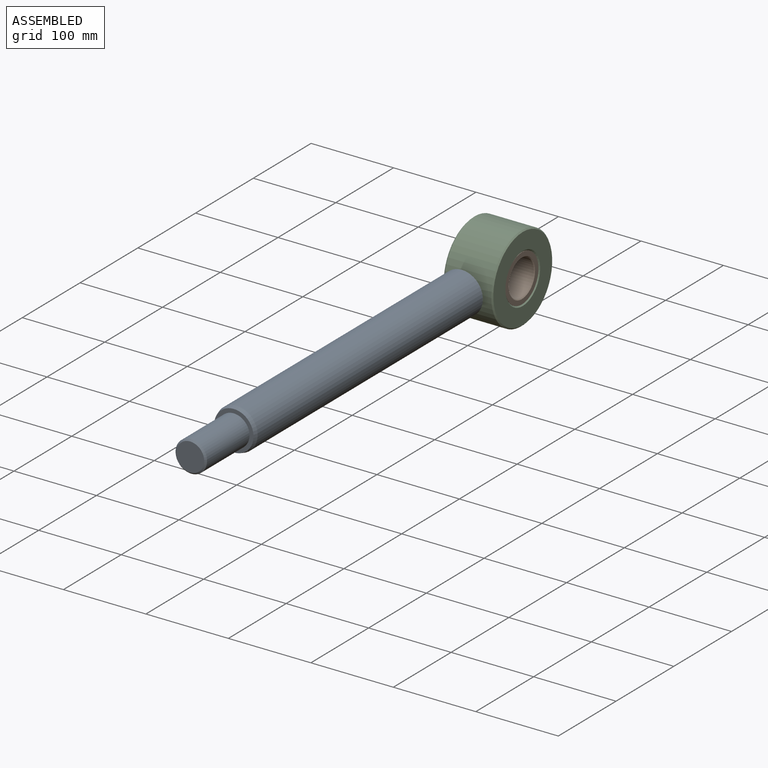
[diagram: assembled view]
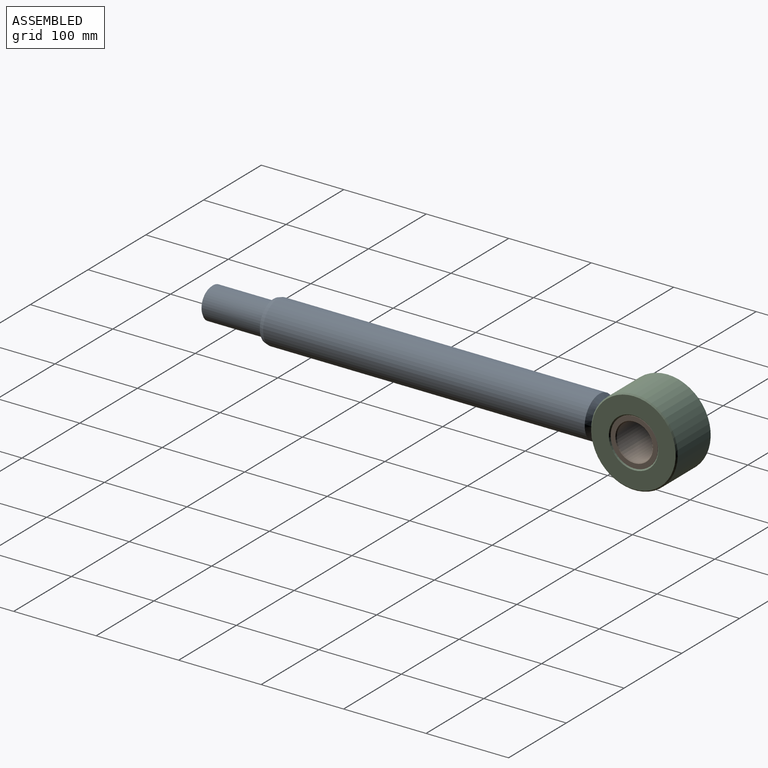
[diagram: assembled view, second angle]
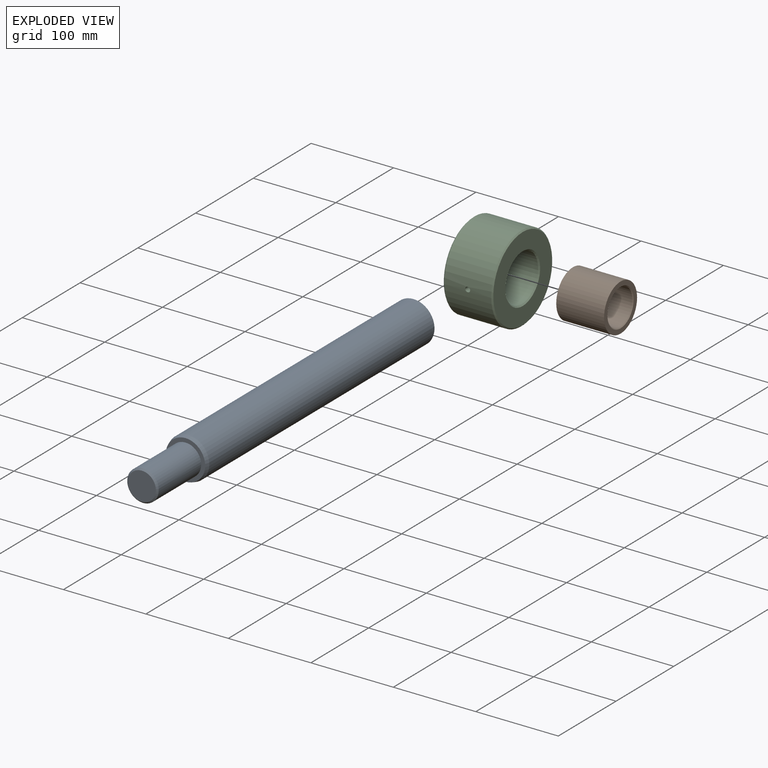
[diagram: exploded view]
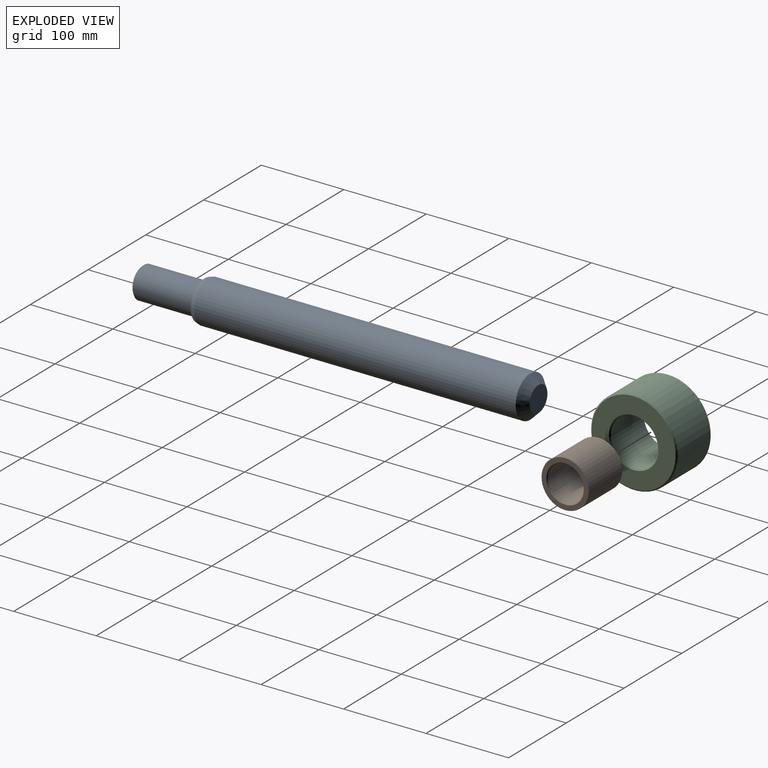
[diagram: exploded view, second angle]
ASSEMBLY  parts=3 mates=2
PART A: 8 faces, bbox 50.8x480.5x50.8 mm
  f0: cylinder r=25.4mm len=389.95mm, axis (0,1,0), area 62233.3mm2, adj f5,f7
  f1: plane 30.8x30.8mm, normal (0,1,0), area 745.1mm2, adj f7
  f2: cylinder r=19.05mm len=73.5mm, axis (0,-1,0), area 8797.6mm2, adj f3,f6
  f3: plane 47.8x47.8mm, normal (0,-1,0), area 654.4mm2, adj f2,f5
  f4: plane 34.1x34.1mm, normal (0,-1,0), area 913.3mm2, adj f6
  f5: cone r=23.9mm half-angle=16.7deg, axis (0,1,0), area 808.5mm2, adj f0,f3
  f6: cone r=17.05mm half-angle=45deg, axis (0,1,0), area 320.8mm2, adj f2,f4
  f7: cone r=25.4mm half-angle=45deg, axis (0,-1,0), area 1812.7mm2, adj f0,f1
PART B: 6 faces, bbox 57.2x58x57.2 mm
  f0: cylinder r=21.79mm len=56mm, axis (0,1,0), area 7668.1mm2, adj f4,f5
  f1: cylinder r=28.57mm len=58mm, axis (0,1,0), area 10413.4mm2, adj f2,f3
  f2: plane 57.15x57.15mm, normal (0,-1,0), area 933mm2, adj f1,f5
  f3: plane 57.15x57.15mm, normal (0,1,0), area 933mm2, adj f1,f4
  f4: cone r=22.79mm half-angle=45deg, axis (0,1,0), area 198.1mm2, adj f0,f3
  f5: cone r=21.79mm half-angle=45deg, axis (0,-1,0), area 198.1mm2, adj f0,f2
PART C: 10 faces, bbox 105x60x105 mm
  f0: cylinder r=52.5mm len=105mm, axis (0,1,0), area 18774.5mm2, adj f5,f7,f8
  f1: cylinder r=28.57mm len=57.15mm, axis (0,1,0), area 10233.9mm2, adj f4,f6
  f2: plane 102x102mm, normal (0,-1,0), area 5329.7mm2, adj f6,f7
  f3: plane 102x102mm, normal (0,1,0), area 5329.7mm2, adj f4,f5
  f4: cone r=30.07mm half-angle=45deg, axis (0,1,0), area 390.9mm2, adj f1,f3
  f5: cone r=52.5mm half-angle=45deg, axis (0,-1,0), area 689.8mm2, adj f0,f3
  f6: cone r=28.57mm half-angle=45deg, axis (0,-1,0), area 390.9mm2, adj f1,f2
  f7: cone r=51mm half-angle=45deg, axis (0,1,0), area 689.8mm2, adj f0,f2
  f8: cylinder r=3mm len=7.5mm, axis (-1,0,0), area 140.6mm2, adj f0,f9
  f9: plane 6x6mm, normal (1,0,0), area 28.3mm2, adj f8
PLACE A at identity
PLACE B rot(axis=(-0.58,0.58,0.58),120deg) t=(-29,52.55,0)mm
PLACE C rot(axis=(0.71,-0.71,0),180deg) t=(-30,52.55,0)mm
MATE fastened C.f8 <-> A.f0  axis (0,1,0) through (0,0,0)mm
MATE fastened B.f0 <-> C.f0  axis (-1,0,0) through (0,52.55,0)mm
